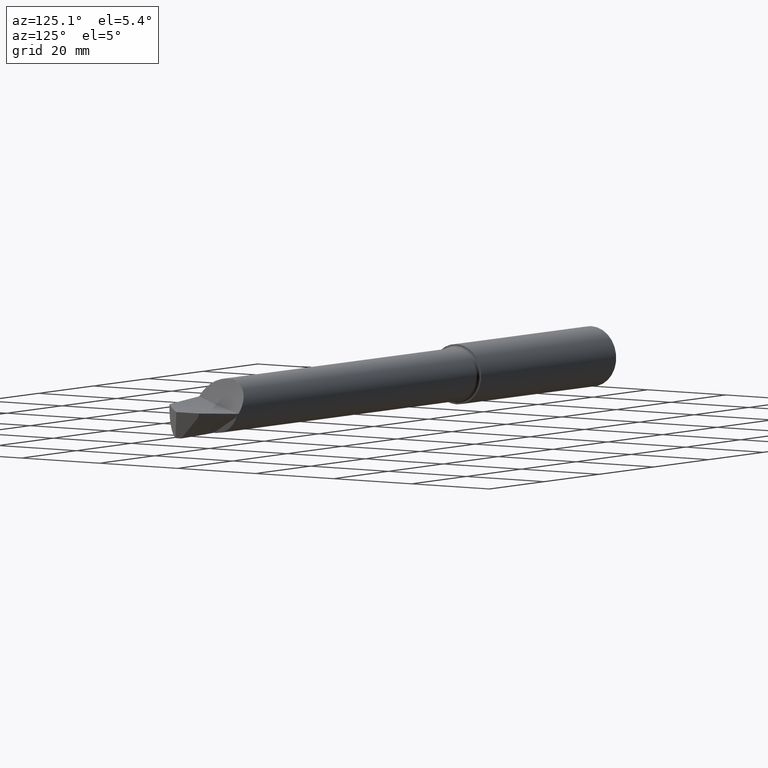
[diagram: clean part render]
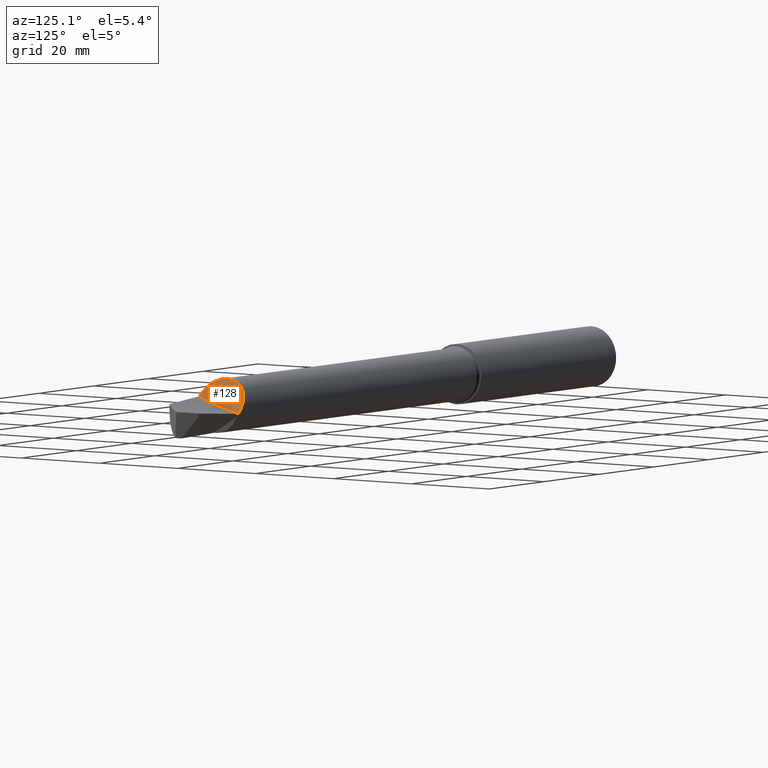
[diagram: same view with one face highlighted and labeled with its STEP entity id]
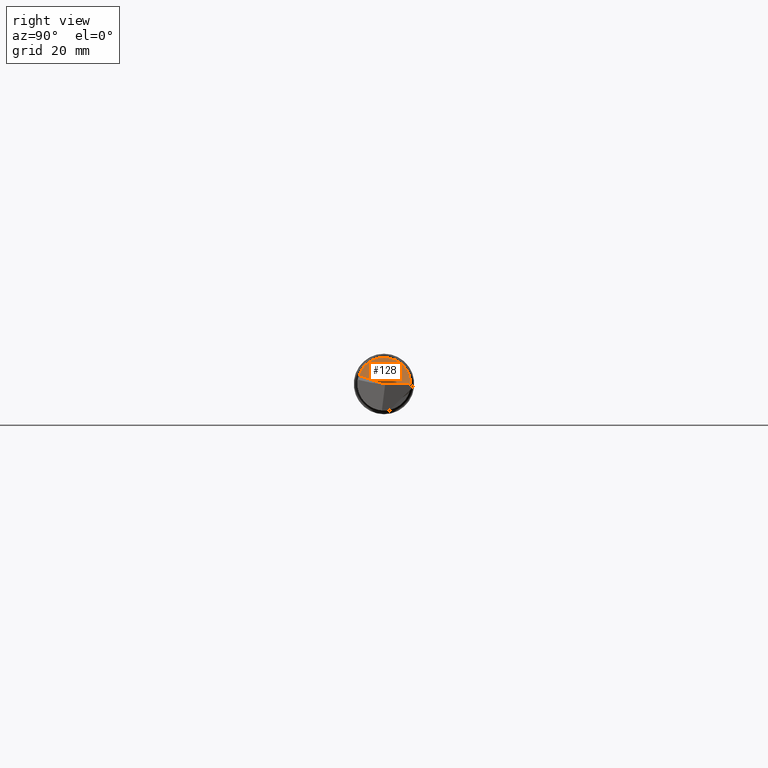
[diagram: same view with one face highlighted and labeled with its STEP entity id]
A machine part, auxiliary view. The second image highlights one B-rep face of the part: STEP entity #128.
A second angle (right view) of the same face is appended — the face is thin or edge-on in the first view.
In plain terms, the highlighted face is a freeform B-spline surface patch.
Its self-contained STEP definition (entity closure, byte-faithful):
#2 = CARTESIAN_POINT ( 'NONE',  ( 5.377263106783646940, 0.2194462568404662584, -0.02799947325392485031 ) ) ;
#6 = VERTEX_POINT ( 'NONE', #314 ) ;
#8 = CARTESIAN_POINT ( 'NONE',  ( 5.336129437027316236, 0.2172026737800336060, 0.03511665452093235690 ) ) ;
#15 = B_SPLINE_CURVE_WITH_KNOTS ( 'NONE', 3,
 ( #82, #158, #437, #322 ),
 .UNSPECIFIED., .F., .F.,
 ( 4, 4 ),
 ( 0.000000000000000000, 1.000000000000000000 ),
 .UNSPECIFIED. ) ;
#28 = EDGE_CURVE ( 'NONE', #471, #6, #89, .T. ) ;
#30 = CARTESIAN_POINT ( 'NONE',  ( 5.272414265991219651, -0.07762841386096502871, 0.2061942163186600840 ) ) ;
#42 = CARTESIAN_POINT ( 'NONE',  ( 5.382444373406586990, 0.08525274857312417631, -0.02813121554086442724 ) ) ;
#47 = CARTESIAN_POINT ( 'NONE',  ( 5.252747084439405967, 0.001941860339958889929, 0.2199919648580568321 ) ) ;
#52 = CARTESIAN_POINT ( 'NONE',  ( 5.252899803584523575, 0.0009714720314203271947, 0.2199983901436112776 ) ) ;
#55 = CARTESIAN_POINT ( 'NONE',  ( 5.263299120774839857, 0.1481083136068665207, 0.1627128149071685459 ) ) ;
#66 = CARTESIAN_POINT ( 'NONE',  ( 5.361872680313166661, 0.2211791025387655485, -0.004520542396876575664 ) ) ;
#77 = CARTESIAN_POINT ( 'NONE',  ( 5.338186628435208192, 0.2176984924494593521, 0.03190986540131428295 ) ) ;
#82 = CARTESIAN_POINT ( 'NONE',  ( 5.250000000000000888, 0.02296396303118268881, 0.2187982093206032042 ) ) ;
#86 = B_SPLINE_CURVE_WITH_KNOTS ( 'NONE', 3,
 ( #469, #746, #52, #47, #576, #294, #618, #472, #686 ),
 .UNSPECIFIED., .F., .F.,
 ( 4, 2, 1, 1, 1, 4 ),
 ( 0.9276727079954699695, 0.9321931637457538944, 0.9367136194960377082, 0.9457545309966040037, 0.9638363539977363725, 1.000000000000000000 ),
 .UNSPECIFIED. ) ;
#87 = EDGE_CURVE ( 'NONE', #193, #629, #15, .T. ) ;
#88 = CARTESIAN_POINT ( 'NONE',  ( 5.310708596583527452, -0.1601832435777479635, 0.1525009408925927790 ) ) ;
#89 = B_SPLINE_CURVE_WITH_KNOTS ( 'NONE', 3,
 ( #261, #255, #377, #371 ),
 .UNSPECIFIED., .F., .F.,
 ( 4, 4 ),
 ( 0.000000000000000000, 1.000000000000000000 ),
 .UNSPECIFIED. ) ;
#104 = CARTESIAN_POINT ( 'NONE',  ( 5.303082447116823417, 0.2014617548662042956, 0.08839233498445403514 ) ) ;
#117 = ORIENTED_EDGE ( 'NONE', *, *, #149, .F. ) ;
#120 = CARTESIAN_POINT ( 'NONE',  ( 5.258515655996601978, 0.1351780063360196460, 0.1737028663086810920 ) ) ;
#128 = ADVANCED_FACE ( 'NONE', ( #711 ), #710, .T. ) ;
#130 = CARTESIAN_POINT ( 'NONE',  ( 5.392944745247168825, 0.2140968924730454748, -0.05062134562993383935 ) ) ;
#137 = ORIENTED_EDGE ( 'NONE', *, *, #28, .F. ) ;
#149 = EDGE_CURVE ( 'NONE', #669, #193, #86, .T. ) ;
#158 = CARTESIAN_POINT ( 'NONE',  ( 5.250000000000000888, 0.04699247397412212313, 0.2120036020236623353 ) ) ;
#162 = CARTESIAN_POINT ( 'NONE',  ( 5.301951721649977856, 0.2006176853541234983, 0.09029816438342547213 ) ) ;
#167 = CARTESIAN_POINT ( 'NONE',  ( 5.302742053925486587, 0.2012100239217667619, 0.08896533452429478128 ) ) ;
#173 = CARTESIAN_POINT ( 'NONE',  ( 5.250000000000000888, 0.09504805913230378323, 0.1984083326253766877 ) ) ;
#174 = CARTESIAN_POINT ( 'NONE',  ( 5.250000000000000888, 0.02296396303118268881, 0.2187982093206032042 ) ) ;
#185 = CARTESIAN_POINT ( 'NONE',  ( 5.341349125908413598, 0.2183424038738390471, 0.02700579478126316491 ) ) ;
#193 = VERTEX_POINT ( 'NONE', #174 ) ;
#195 = CARTESIAN_POINT ( 'NONE',  ( 5.249999999999999112, -0.1532211501735197823, 0.2786091727372935756 ) ) ;
#196 = EDGE_CURVE ( 'NONE', #629, #471, #272, .T. ) ;
#199 = CARTESIAN_POINT ( 'NONE',  ( 5.249999999999998224, 0.1374388247360719684, 0.1827080197078169710 ) ) ;
#200 = CARTESIAN_POINT ( 'NONE',  ( 5.292376002346411035, -0.1261431576479110639, 0.1802597226350352022 ) ) ;
#202 = CARTESIAN_POINT ( 'NONE',  ( 5.356559098504063421, -0.2088777642239236787, 0.06906576061805669298 ) ) ;
#209 = CARTESIAN_POINT ( 'NONE',  ( 5.301763750540529507, -0.1449087477148439662, 0.1665523849273789492 ) ) ;
#231 = CARTESIAN_POINT ( 'NONE',  ( 5.260302850203079750, 0.1404692177818710475, 0.1694536208928180965 ) ) ;
#235 = CARTESIAN_POINT ( 'NONE',  ( 5.253785031901272440, 0.1187834096907167958, 0.1856707252788582230 ) ) ;
#239 = CARTESIAN_POINT ( 'NONE',  ( 5.273164231607916363, 0.1684140353893864850, 0.1420550892562131851 ) ) ;
#249 = CARTESIAN_POINT ( 'NONE',  ( 5.346221521786773678, 0.2191350097120725593, 0.01949428548441049097 ) ) ;
#253 = CARTESIAN_POINT ( 'NONE',  ( 5.342949552235360500, 0.2186394009669333782, 0.02453030179456536231 ) ) ;
#255 = CARTESIAN_POINT ( 'NONE',  ( 5.380960247964670984, 0.07009182744065016457, -0.02311703390389483956 ) ) ;
#261 = CARTESIAN_POINT ( 'NONE',  ( 5.392944745247168825, 0.2140968924730454748, -0.05062134562993383935 ) ) ;
#265 = CARTESIAN_POINT ( 'NONE',  ( 5.291057892820146158, -0.1233858508182268526, 0.1821426667538900979 ) ) ;
#271 = CARTESIAN_POINT ( 'NONE',  ( 5.289661220195152502, -0.1204269891560956207, 0.1841250165428706675 ) ) ;
#272 = B_SPLINE_CURVE_WITH_KNOTS ( 'NONE', 3,
 ( #356, #742, #235, #120, #231, #55, #289, #521, #755, #337, #697, #410, #239, #677, #566, #279, #511, #463, #736, #162, #167, #104, #340, #284, #517, #458, #406, #626, #8, #77, #185, #253, #303, #487, #249, #654, #66, #2, #588 ),
 .UNSPECIFIED., .F., .F.,
 ( 4, 2, 2, 1, 1, 1, 2, 2, 2, 2, 1, 1, 1, 1, 2, 2, 2, 2, 2, 1, 1, 2, 2, 4 ),
 ( 0.000000000000000000, 0.1250000000000632550, 0.1875000000000961176, 0.2187500000001124656, 0.2343750000001207090, 0.2421875000001248446, 0.2460937500001254830, 0.2500000000001261213, 0.3750000000000630607, 0.4375000000000336398, 0.4687500000000210387, 0.4843750000000147660, 0.4921875000000116018, 0.4960937500000122680, 0.4980468750000126010, 0.5000000000000128786, 0.6249999999999572564, 0.6874999999999319433, 0.7187499999999192868, 0.7343749999999129585, 0.7421874999999098499, 0.7460937499999106270, 0.7499999999999112932, 1.000000000000000000 ),
 .UNSPECIFIED. ) ;
#279 = CARTESIAN_POINT ( 'NONE',  ( 5.289897884054999722, 0.1899916407718357791, 0.1111104138017025428 ) ) ;
#284 = CARTESIAN_POINT ( 'NONE',  ( 5.303450587856115561, 0.2017322369564578388, 0.08777317349638595612 ) ) ;
#289 = CARTESIAN_POINT ( 'NONE',  ( 5.264876125876235768, 0.1518534575458663771, 0.1592507360763968649 ) ) ;
#293 = CARTESIAN_POINT ( 'NONE',  ( 5.253048836201133831, -1.183062825525345383E-06, 0.2200124226379089887 ) ) ;
#294 = CARTESIAN_POINT ( 'NONE',  ( 5.252011678586734789, 0.006780167464581198303, 0.2199103442296861943 ) ) ;
#299 = CARTESIAN_POINT ( 'NONE',  ( 5.395776765633406136, 0.2486773137347068063, -0.05698163954414497273 ) ) ;
#303 = CARTESIAN_POINT ( 'NONE',  ( 5.344850277066564459, 0.2189397232252884296, 0.02160200614133551966 ) ) ;
#305 = ORIENTED_EDGE ( 'NONE', *, *, #196, .F. ) ;
#314 = CARTESIAN_POINT ( 'NONE',  ( 5.356559098504063421, -0.2088777642239236787, 0.06906576061805669298 ) ) ;
#320 = CARTESIAN_POINT ( 'NONE',  ( 5.291331261531611929, -0.1239598244847264774, 0.1817528458976670203 ) ) ;
#322 = CARTESIAN_POINT ( 'NONE',  ( 5.250000000000000888, 0.09504805913230378323, 0.1984083326253766877 ) ) ;
#324 = CARTESIAN_POINT ( 'NONE',  ( 5.343568907379043331, -0.2004185357093110631, 0.09466616758537328702 ) ) ;
#337 = CARTESIAN_POINT ( 'NONE',  ( 5.268323433205456929, 0.1590487263599245915, 0.1519989609637832917 ) ) ;
#340 = CARTESIAN_POINT ( 'NONE',  ( 5.303309749101932979, 0.2016291004824135591, 0.08800993919113511699 ) ) ;
#351 = CARTESIAN_POINT ( 'NONE',  ( 5.249999999999999112, 0.2878387765271836485, 0.1549375342437022685 ) ) ;
#354 = ORIENTED_EDGE ( 'NONE', *, *, #87, .F. ) ;
#356 = CARTESIAN_POINT ( 'NONE',  ( 5.250000000000000888, 0.09504805913230378323, 0.1984083326253766877 ) ) ;
#371 = CARTESIAN_POINT ( 'NONE',  ( 5.356559098504063421, -0.2088777642239236787, 0.06906576061805669298 ) ) ;
#377 = CARTESIAN_POINT ( 'NONE',  ( 5.368992473848769542, -0.07181561011661122262, 0.01702505518877546822 ) ) ;
#382 = CARTESIAN_POINT ( 'NONE',  ( 5.286194494552781009, -0.1128910208792994335, 0.1889741111404006357 ) ) ;
#387 = B_SPLINE_CURVE_WITH_KNOTS ( 'NONE', 3,
 ( #202, #324, #728, #88, #209, #495, #200, #320, #615, #265, #436, #555, #271, #382, #438, #668, #30, #561, #660, #493 ),
 .UNSPECIFIED., .F., .F.,
 ( 4, 2, 2, 1, 1, 2, 2, 1, 1, 2, 2, 4 ),
 ( 0.000000000000000000, 0.2319181769986998209, 0.4638363539973996419, 0.4928261261222369738, 0.4964498476378415015, 0.4982617083956438209, 0.5000735691534462513, 0.5073210121846650766, 0.5218158982471060581, 0.5797954424968704279, 0.6957545309964027203, 0.9276727079954699695 ),
 .UNSPECIFIED. ) ;
#406 = CARTESIAN_POINT ( 'NONE',  ( 5.326303742156078158, 0.2141922380105743262, 0.05056821540889350208 ) ) ;
#410 = CARTESIAN_POINT ( 'NONE',  ( 5.268791352084498669, 0.1599650663951595886, 0.1510341587815036413 ) ) ;
#436 = CARTESIAN_POINT ( 'NONE',  ( 5.291026367974281719, -0.1233195885780081907, 0.1821875986796213653 ) ) ;
#437 = CARTESIAN_POINT ( 'NONE',  ( 5.250000000000000888, 0.07102077957284554099, 0.2052070382287639605 ) ) ;
#438 = CARTESIAN_POINT ( 'NONE',  ( 5.283226719027450891, -0.1059187799789718248, 0.1929277633858645646 ) ) ;
#444 = EDGE_LOOP ( 'NONE', ( #527, #137, #305, #354, #117 ) ) ;
#458 = CARTESIAN_POINT ( 'NONE',  ( 5.315494800936125586, 0.2096186112504940802, 0.06783711927764354832 ) ) ;
#463 = CARTESIAN_POINT ( 'NONE',  ( 5.297319446116645736, 0.1969271478189842384, 0.09817724510292789863 ) ) ;
#469 = CARTESIAN_POINT ( 'NONE',  ( 5.253048836201133831, -1.183062825525345383E-06, 0.2200124226379089887 ) ) ;
#471 = VERTEX_POINT ( 'NONE', #130 ) ;
#472 = CARTESIAN_POINT ( 'NONE',  ( 5.250393707398775867, 0.01920438848276740523, 0.2191927973443306421 ) ) ;
#486 = EDGE_CURVE ( 'NONE', #6, #669, #387, .T. ) ;
#487 = CARTESIAN_POINT ( 'NONE',  ( 5.345672065019172692, 0.2190582683874626457, 0.02033850287371858495 ) ) ;
#493 = CARTESIAN_POINT ( 'NONE',  ( 5.253048836201133831, -1.183062825525345383E-06, 0.2200124226379089887 ) ) ;
#495 = CARTESIAN_POINT ( 'NONE',  ( 5.293395547304614368, -0.1282223768002896391, 0.1787856457334581206 ) ) ;
#511 = CARTESIAN_POINT ( 'NONE',  ( 5.294797823663016878, 0.1946680960171449093, 0.1025422805366140583 ) ) ;
#517 = CARTESIAN_POINT ( 'NONE',  ( 5.309107083977441910, 0.2058594515306521877, 0.07826862847856236316 ) ) ;
#521 = CARTESIAN_POINT ( 'NONE',  ( 5.266853987338341980, 0.1560847454646942245, 0.1550568531507960923 ) ) ;
#527 = ORIENTED_EDGE ( 'NONE', *, *, #486, .F. ) ;
#555 = CARTESIAN_POINT ( 'NONE',  ( 5.290623232216534078, -0.1224700767580466365, 0.1827614645761349577 ) ) ;
#561 = CARTESIAN_POINT ( 'NONE',  ( 5.261697773686591084, -0.04351199093201792156, 0.2169691419821596634 ) ) ;
#566 = CARTESIAN_POINT ( 'NONE',  ( 5.286822331381984874, 0.1866629217514929606, 0.1166063220459099964 ) ) ;
#570 = CARTESIAN_POINT ( 'NONE',  ( 5.355206627485801008, -0.2299856027569996131, 0.07713840752617585894 ) ) ;
#576 = CARTESIAN_POINT ( 'NONE',  ( 5.252520733773949679, 0.003396144702146769358, 0.2199775199475226262 ) ) ;
#588 = CARTESIAN_POINT ( 'NONE',  ( 5.392944745247168825, 0.2140968924730454748, -0.05062134562993383935 ) ) ;
#615 = CARTESIAN_POINT ( 'NONE',  ( 5.291167129969539751, -0.1236153981034094074, 0.1819869571867500369 ) ) ;
#618 = CARTESIAN_POINT ( 'NONE',  ( 5.251069953674378787, 0.01350924812411918516, 0.2196435465291619316 ) ) ;
#622 = CARTESIAN_POINT ( 'NONE',  ( 5.368569211507728589, -0.07569746957438293344, 0.01699333443654543405 ) ) ;
#626 = CARTESIAN_POINT ( 'NONE',  ( 5.330111283526380639, 0.2155380220859020035, 0.04454306593680017884 ) ) ;
#629 = VERTEX_POINT ( 'NONE', #173 ) ;
#653 = CARTESIAN_POINT ( 'NONE',  ( 5.250000000000001776, -0.01062714212941492410, 0.2242531487011351077 ) ) ;
#654 = CARTESIAN_POINT ( 'NONE',  ( 5.346537449119416863, 0.2191775090838475881, 0.01900924779463317171 ) ) ;
#660 = CARTESIAN_POINT ( 'NONE',  ( 5.256435488265876366, -0.02101578052564987212, 0.2199999835917510471 ) ) ;
#668 = CARTESIAN_POINT ( 'NONE',  ( 5.276456940788357031, -0.08905058601311724442, 0.2015679351482878578 ) ) ;
#669 = VERTEX_POINT ( 'NONE', #293 ) ;
#677 = CARTESIAN_POINT ( 'NONE',  ( 5.278168894559946978, 0.1761411732434174648, 0.1324183139899700046 ) ) ;
#686 = CARTESIAN_POINT ( 'NONE',  ( 5.250000000000000888, 0.02296396303118268881, 0.2187982093206032042 ) ) ;
#697 = CARTESIAN_POINT ( 'NONE',  ( 5.268622416054465241, 0.1596362058502384662, 0.1513818459146411277 ) ) ;
#710 = B_SPLINE_SURFACE_WITH_KNOTS ( 'NONE', 1, 3, ( 
 ( #195, #653, #199, #351 ),
 ( #570, #622, #42, #299 ) ),
 .UNSPECIFIED., .F., .F., .F.,
 ( 2, 2 ),
 ( 4, 4 ),
 ( 0.000000000000000000, 1.000000000000000000 ),
 ( 0.03106933249321034221, 0.04273401883267911178 ),
 .UNSPECIFIED. ) ;
#711 = FACE_OUTER_BOUND ( 'NONE', #444, .T. ) ;
#728 = CARTESIAN_POINT ( 'NONE',  ( 5.331611175002785252, -0.1879456397189687988, 0.1165832106559163139 ) ) ;
#736 = CARTESIAN_POINT ( 'NONE',  ( 5.300386731116057071, 0.1994133129509669533, 0.09294706894654218565 ) ) ;
#742 = CARTESIAN_POINT ( 'NONE',  ( 5.251472560536515566, 0.1071583420974530909, 0.1926068782975457749 ) ) ;
#746 = CARTESIAN_POINT ( 'NONE',  ( 5.252989359298702254, 0.0004094560187717709667, 0.2200000003197546961 ) ) ;
#755 = CARTESIAN_POINT ( 'NONE',  ( 5.267877423613678722, 0.1581649231382637744, 0.1529219638397233128 ) ) ;